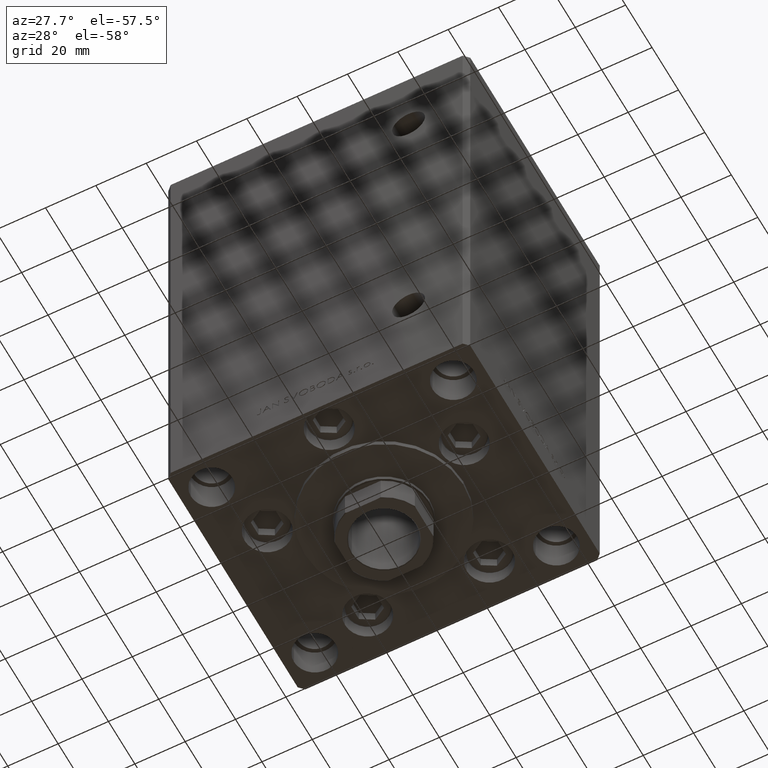
[diagram: clean part render]
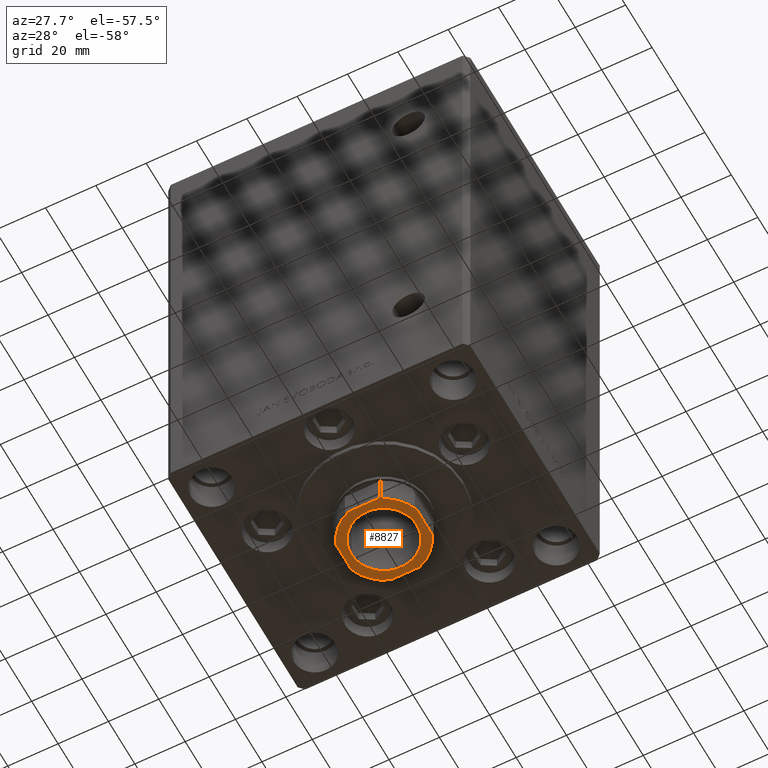
[diagram: same view with one face highlighted and labeled with its STEP entity id]
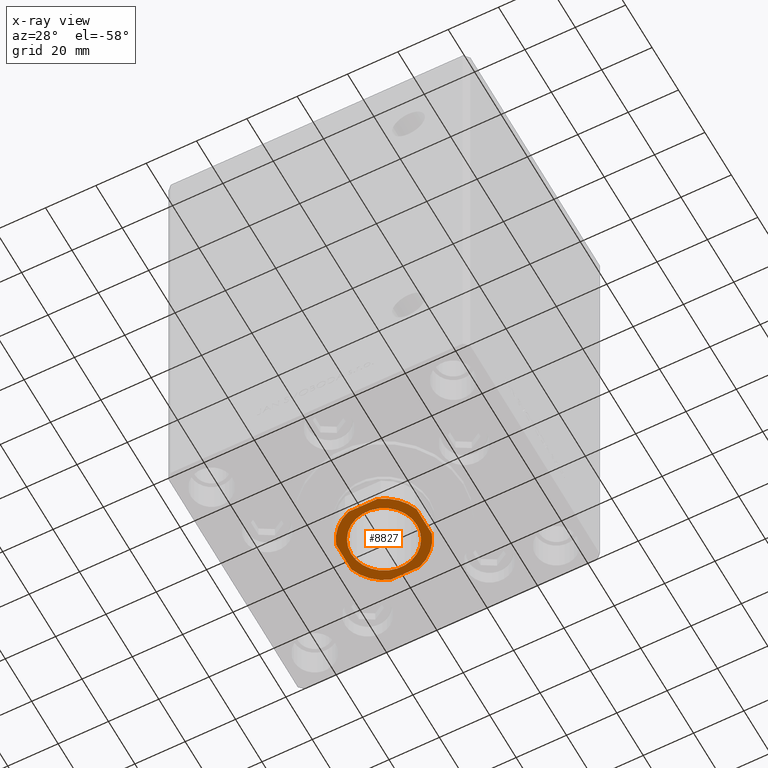
[diagram: x-ray of the same camera — body ghosted, the highlighted face saturated]
A machine part, auxiliary view. The second image highlights one B-rep face of the part: STEP entity #8827.
The next image is the same camera in x-ray: the body ghosted, the highlighted face saturated — about 0% of this face is hidden behind the body in this view.
In plain terms, the highlighted planar face has unit normal (0, 0, -1).
Its self-contained STEP definition (entity closure, byte-faithful):
#694 = ORIENTED_EDGE ( 'NONE', *, *, #35533, .T. ) ;
#2238 = CARTESIAN_POINT ( 'NONE',  ( -16.00000000000000000, -5.744562646538033945, 169.2500000000000000 ) ) ;
#3532 = CIRCLE ( 'NONE', #49692, 13.05000000000003268 ) ;
#4143 = PLANE ( 'NONE',  #6205 ) ;
#6205 = AXIS2_PLACEMENT_3D ( 'NONE', #12002, #19346, #42686 ) ;
#7406 = LINE ( 'NONE', #38338, #11152 ) ;
#7660 = VERTEX_POINT ( 'NONE', #13217 ) ;
#7901 = DIRECTION ( 'NONE',  ( -0.000000000000000000, 0.000000000000000000, 1.000000000000000000 ) ) ;
#7977 = DIRECTION ( 'NONE',  ( 1.000000000000000000, 0.000000000000000000, 0.000000000000000000 ) ) ;
#8827 = ADVANCED_FACE ( 'NONE', ( #15289, #38869 ), #4143, .T. ) ;
#10793 = CARTESIAN_POINT ( 'NONE',  ( 16.00000000000000000, 5.744562646538033945, 169.2500000000000000 ) ) ;
#11152 = VECTOR ( 'NONE', #46208, 1000.000000000000000 ) ;
#11651 = DIRECTION ( 'NONE',  ( 1.000000000000000000, 0.000000000000000000, 0.000000000000000000 ) ) ;
#11860 = CARTESIAN_POINT ( 'NONE',  ( -16.00000000000000000, 15.99999999999999645, 169.2500000000000000 ) ) ;
#12002 = CARTESIAN_POINT ( 'NONE',  ( 0.000000000000000000, 0.000000000000000000, 169.2500000000000000 ) ) ;
#12037 = DIRECTION ( 'NONE',  ( -0.000000000000000000, 0.000000000000000000, 1.000000000000000000 ) ) ;
#12070 = VERTEX_POINT ( 'NONE', #19434 ) ;
#12958 = DIRECTION ( 'NONE',  ( 0.000000000000000000, -0.000000000000000000, -1.000000000000000000 ) ) ;
#13217 = CARTESIAN_POINT ( 'NONE',  ( 13.05000000000003268, 0.000000000000000000, 169.2500000000000000 ) ) ;
#13858 = EDGE_CURVE ( 'NONE', #48640, #34394, #44346, .T. ) ;
#14717 = EDGE_CURVE ( 'NONE', #12070, #48640, #15663, .T. ) ;
#15289 = FACE_BOUND ( 'NONE', #42533, .T. ) ;
#15663 = LINE ( 'NONE', #11860, #32183 ) ;
#16059 = CARTESIAN_POINT ( 'NONE',  ( -5.744562646538033945, 16.00000000000000000, 169.2500000000000000 ) ) ;
#16411 = AXIS2_PLACEMENT_3D ( 'NONE', #35794, #7901, #31985 ) ;
#16768 = DIRECTION ( 'NONE',  ( 1.000000000000000000, 0.000000000000000000, 0.000000000000000000 ) ) ;
#17306 = AXIS2_PLACEMENT_3D ( 'NONE', #31511, #39094, #16768 ) ;
#18060 = CARTESIAN_POINT ( 'NONE',  ( 16.00000000000000355, -5.744562646538033057, 169.2500000000000000 ) ) ;
#18487 = EDGE_LOOP ( 'NONE', ( #38725, #25240, #33590, #694, #27057, #39656, #26670, #19781 ) ) ;
#18514 = CARTESIAN_POINT ( 'NONE',  ( -13.05000000000003268, 1.598164072887299324E-15, 169.2500000000000000 ) ) ;
#18895 = CARTESIAN_POINT ( 'NONE',  ( 5.744562646538033057, 16.00000000000000000, 169.2500000000000000 ) ) ;
#19346 = DIRECTION ( 'NONE',  ( -0.000000000000000000, 0.000000000000000000, 1.000000000000000000 ) ) ;
#19434 = CARTESIAN_POINT ( 'NONE',  ( -16.00000000000000000, 5.744562646538029504, 169.2500000000000000 ) ) ;
#19500 = AXIS2_PLACEMENT_3D ( 'NONE', #26416, #34532, #30468 ) ;
#19508 = VERTEX_POINT ( 'NONE', #16059 ) ;
#19781 = ORIENTED_EDGE ( 'NONE', *, *, #26193, .T. ) ;
#21119 = CIRCLE ( 'NONE', #19500, 17.00000000000000000 ) ;
#21127 = VERTEX_POINT ( 'NONE', #42819 ) ;
#25240 = ORIENTED_EDGE ( 'NONE', *, *, #13858, .T. ) ;
#25378 = CARTESIAN_POINT ( 'NONE',  ( 0.000000000000000000, 0.000000000000000000, 169.2500000000000000 ) ) ;
#26031 = DIRECTION ( 'NONE',  ( 1.000000000000000000, 1.084202172485504434E-16, 0.000000000000000000 ) ) ;
#26193 = EDGE_CURVE ( 'NONE', #19508, #12070, #21119, .T. ) ;
#26416 = CARTESIAN_POINT ( 'NONE',  ( 0.000000000000000000, 0.000000000000000000, 169.2500000000000000 ) ) ;
#26670 = ORIENTED_EDGE ( 'NONE', *, *, #45311, .T. ) ;
#27057 = ORIENTED_EDGE ( 'NONE', *, *, #49034, .T. ) ;
#27963 = DIRECTION ( 'NONE',  ( -1.000000000000000000, -1.084202172485504434E-16, -0.000000000000000000 ) ) ;
#28062 = EDGE_CURVE ( 'NONE', #7660, #42492, #47919, .T. ) ;
#30468 = DIRECTION ( 'NONE',  ( 1.000000000000000000, 0.000000000000000000, 0.000000000000000000 ) ) ;
#30706 = EDGE_CURVE ( 'NONE', #34394, #21127, #49118, .T. ) ;
#30929 = CARTESIAN_POINT ( 'NONE',  ( 0.000000000000000000, 0.000000000000000000, 169.2500000000000000 ) ) ;
#30974 = VECTOR ( 'NONE', #26031, 1000.000000000000000 ) ;
#31400 = ORIENTED_EDGE ( 'NONE', *, *, #36819, .T. ) ;
#31511 = CARTESIAN_POINT ( 'NONE',  ( 0.000000000000000000, 0.000000000000000000, 169.2500000000000000 ) ) ;
#31985 = DIRECTION ( 'NONE',  ( 1.000000000000000000, 0.000000000000000000, 0.000000000000000000 ) ) ;
#32027 = CARTESIAN_POINT ( 'NONE',  ( -16.00000000000000000, 15.99999999999999645, 169.2500000000000000 ) ) ;
#32183 = VECTOR ( 'NONE', #50174, 1000.000000000000000 ) ;
#32195 = VECTOR ( 'NONE', #27963, 1000.000000000000000 ) ;
#32277 = LINE ( 'NONE', #32027, #32195 ) ;
#32975 = AXIS2_PLACEMENT_3D ( 'NONE', #42977, #12037, #7977 ) ;
#33590 = ORIENTED_EDGE ( 'NONE', *, *, #30706, .T. ) ;
#34394 = VERTEX_POINT ( 'NONE', #37263 ) ;
#34532 = DIRECTION ( 'NONE',  ( -0.000000000000000000, 0.000000000000000000, 1.000000000000000000 ) ) ;
#35533 = EDGE_CURVE ( 'NONE', #21127, #36241, #37472, .T. ) ;
#35794 = CARTESIAN_POINT ( 'NONE',  ( 0.000000000000000000, 0.000000000000000000, 169.2500000000000000 ) ) ;
#36241 = VERTEX_POINT ( 'NONE', #18060 ) ;
#36819 = EDGE_CURVE ( 'NONE', #42492, #7660, #3532, .T. ) ;
#37263 = CARTESIAN_POINT ( 'NONE',  ( -5.744562646538029504, -16.00000000000000355, 169.2500000000000000 ) ) ;
#37394 = EDGE_CURVE ( 'NONE', #38888, #38826, #46462, .T. ) ;
#37431 = CARTESIAN_POINT ( 'NONE',  ( -15.99999999999999645, -16.00000000000000355, 169.2500000000000000 ) ) ;
#37472 = CIRCLE ( 'NONE', #16411, 17.00000000000000000 ) ;
#38338 = CARTESIAN_POINT ( 'NONE',  ( 16.00000000000000000, 16.00000000000000000, 169.2500000000000000 ) ) ;
#38725 = ORIENTED_EDGE ( 'NONE', *, *, #14717, .T. ) ;
#38826 = VERTEX_POINT ( 'NONE', #18895 ) ;
#38869 = FACE_OUTER_BOUND ( 'NONE', #18487, .T. ) ;
#38888 = VERTEX_POINT ( 'NONE', #10793 ) ;
#39094 = DIRECTION ( 'NONE',  ( -0.000000000000000000, 0.000000000000000000, 1.000000000000000000 ) ) ;
#39656 = ORIENTED_EDGE ( 'NONE', *, *, #37394, .T. ) ;
#39805 = AXIS2_PLACEMENT_3D ( 'NONE', #25378, #12958, #40835 ) ;
#40835 = DIRECTION ( 'NONE',  ( 1.000000000000000000, 0.000000000000000000, 0.000000000000000000 ) ) ;
#42492 = VERTEX_POINT ( 'NONE', #18514 ) ;
#42533 = EDGE_LOOP ( 'NONE', ( #43601, #31400 ) ) ;
#42686 = DIRECTION ( 'NONE',  ( 1.000000000000000000, 0.000000000000000000, 0.000000000000000000 ) ) ;
#42819 = CARTESIAN_POINT ( 'NONE',  ( 5.744562646538024175, -16.00000000000000355, 169.2500000000000000 ) ) ;
#42977 = CARTESIAN_POINT ( 'NONE',  ( 0.000000000000000000, 0.000000000000000000, 169.2500000000000000 ) ) ;
#43601 = ORIENTED_EDGE ( 'NONE', *, *, #28062, .T. ) ;
#44346 = CIRCLE ( 'NONE', #32975, 17.00000000000000000 ) ;
#45311 = EDGE_CURVE ( 'NONE', #38826, #19508, #32277, .T. ) ;
#46208 = DIRECTION ( 'NONE',  ( -1.084202172485504434E-16, 1.000000000000000000, -0.000000000000000000 ) ) ;
#46401 = DIRECTION ( 'NONE',  ( 0.000000000000000000, -0.000000000000000000, -1.000000000000000000 ) ) ;
#46462 = CIRCLE ( 'NONE', #17306, 17.00000000000000000 ) ;
#47919 = CIRCLE ( 'NONE', #39805, 13.05000000000003268 ) ;
#48640 = VERTEX_POINT ( 'NONE', #2238 ) ;
#49034 = EDGE_CURVE ( 'NONE', #36241, #38888, #7406, .T. ) ;
#49118 = LINE ( 'NONE', #37431, #30974 ) ;
#49692 = AXIS2_PLACEMENT_3D ( 'NONE', #30929, #46401, #11651 ) ;
#50174 = DIRECTION ( 'NONE',  ( 1.084202172485504434E-16, -1.000000000000000000, 0.000000000000000000 ) ) ;